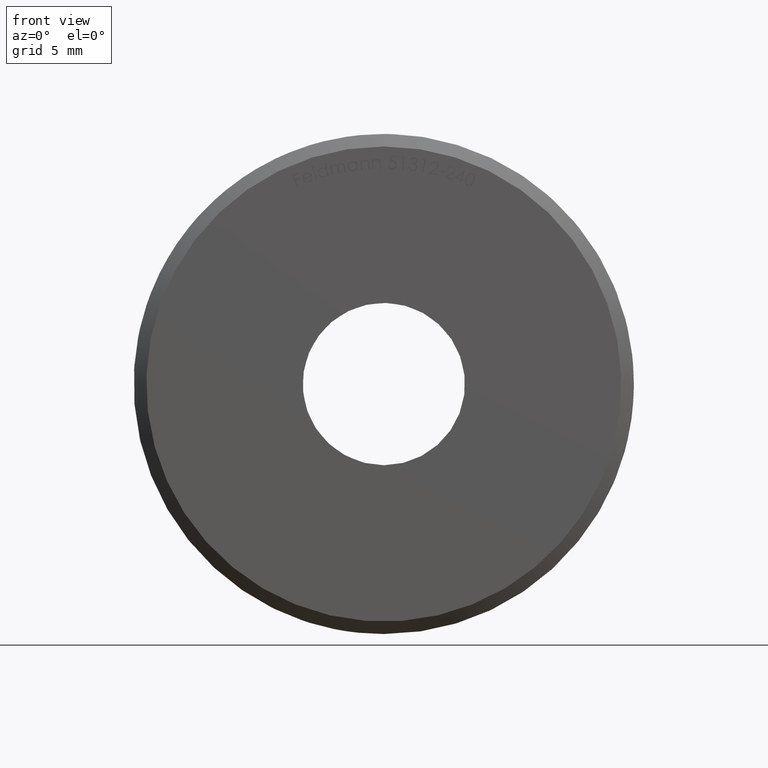
[diagram: clean part render]
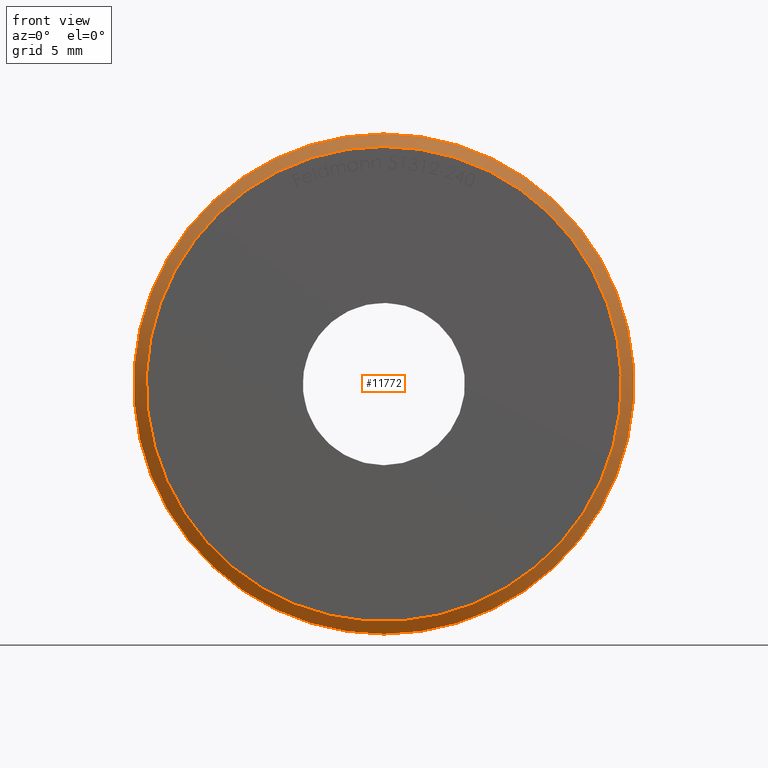
[diagram: same view with one face highlighted and labeled with its STEP entity id]
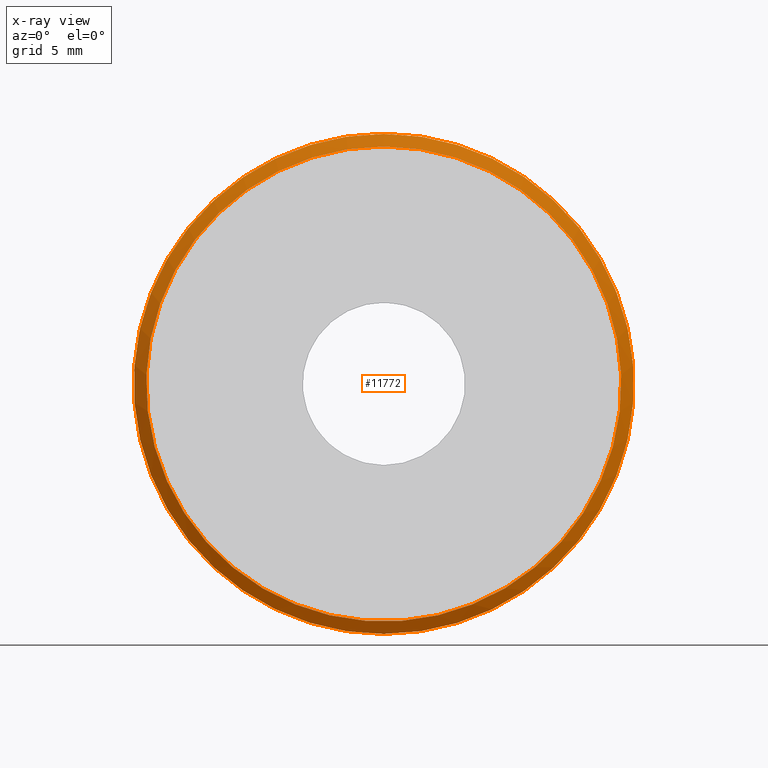
[diagram: x-ray of the same camera — body ghosted, the highlighted face saturated]
A machine part, front view. The second image highlights one B-rep face of the part: STEP entity #11772.
The next image is the same camera in x-ray: the body ghosted, the highlighted face saturated — about 0% of this face is hidden behind the body in this view.
In plain terms, the highlighted conical surface has half-angle 45 deg.
Its self-contained STEP definition (entity closure, byte-faithful):
#45 = AXIS2_PLACEMENT_3D ( 'NONE', #6711, #3061, #11284 ) ;
#203 = DIRECTION ( 'NONE',  ( -0.000000000000000000, -1.000000000000000000, -0.000000000000000000 ) ) ;
#430 = EDGE_CURVE ( 'NONE', #1722, #1722, #10743, .T. ) ;
#1456 = AXIS2_PLACEMENT_3D ( 'NONE', #5936, #1494, #6944 ) ;
#1494 = DIRECTION ( 'NONE',  ( -0.000000000000000000, 1.000000000000000000, -0.000000000000000000 ) ) ;
#1722 = VERTEX_POINT ( 'NONE', #3433 ) ;
#2879 = FACE_BOUND ( 'NONE', #4731, .T. ) ;
#3061 = DIRECTION ( 'NONE',  ( -0.000000000000000000, 1.000000000000000000, -0.000000000000000000 ) ) ;
#3433 = CARTESIAN_POINT ( 'NONE',  ( 0.000000000000000000, 0.000000000000000000, 9.499999999999994671 ) ) ;
#3483 = EDGE_CURVE ( 'NONE', #9646, #9646, #4232, .T. ) ;
#3949 = AXIS2_PLACEMENT_3D ( 'NONE', #8485, #203, #11433 ) ;
#4106 = ORIENTED_EDGE ( 'NONE', *, *, #430, .F. ) ;
#4232 = CIRCLE ( 'NONE', #1456, 10.00000000000000000 ) ;
#4731 = EDGE_LOOP ( 'NONE', ( #4106 ) ) ;
#5936 = CARTESIAN_POINT ( 'NONE',  ( 0.000000000000000000, 0.5000000000000038858, 0.000000000000000000 ) ) ;
#6711 = CARTESIAN_POINT ( 'NONE',  ( 0.000000000000000000, 0.5000000000000038858, 0.000000000000000000 ) ) ;
#6944 = DIRECTION ( 'NONE',  ( 0.000000000000000000, 0.000000000000000000, 1.000000000000000000 ) ) ;
#8485 = CARTESIAN_POINT ( 'NONE',  ( 0.000000000000000000, 0.000000000000000000, 0.000000000000000000 ) ) ;
#8640 = FACE_OUTER_BOUND ( 'NONE', #10102, .T. ) ;
#9646 = VERTEX_POINT ( 'NONE', #9786 ) ;
#9786 = CARTESIAN_POINT ( 'NONE',  ( 0.000000000000000000, 0.5000000000000038858, 10.00000000000000000 ) ) ;
#10102 = EDGE_LOOP ( 'NONE', ( #10703 ) ) ;
#10703 = ORIENTED_EDGE ( 'NONE', *, *, #3483, .F. ) ;
#10743 = CIRCLE ( 'NONE', #3949, 9.499999999999994671 ) ;
#10915 = CONICAL_SURFACE ( 'NONE', #45, 10.00000000000000000, 0.7853981633974500554 ) ;
#11284 = DIRECTION ( 'NONE',  ( 0.000000000000000000, 0.000000000000000000, 1.000000000000000000 ) ) ;
#11433 = DIRECTION ( 'NONE',  ( 0.000000000000000000, 0.000000000000000000, 1.000000000000000000 ) ) ;
#11772 = ADVANCED_FACE ( 'NONE', ( #2879, #8640 ), #10915, .T. ) ;